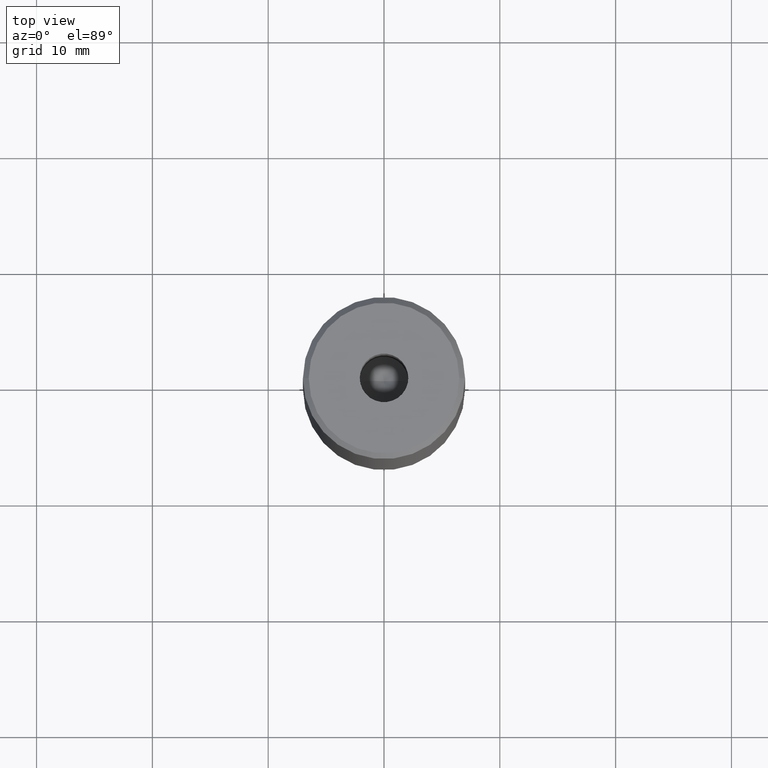
[diagram: clean part render]
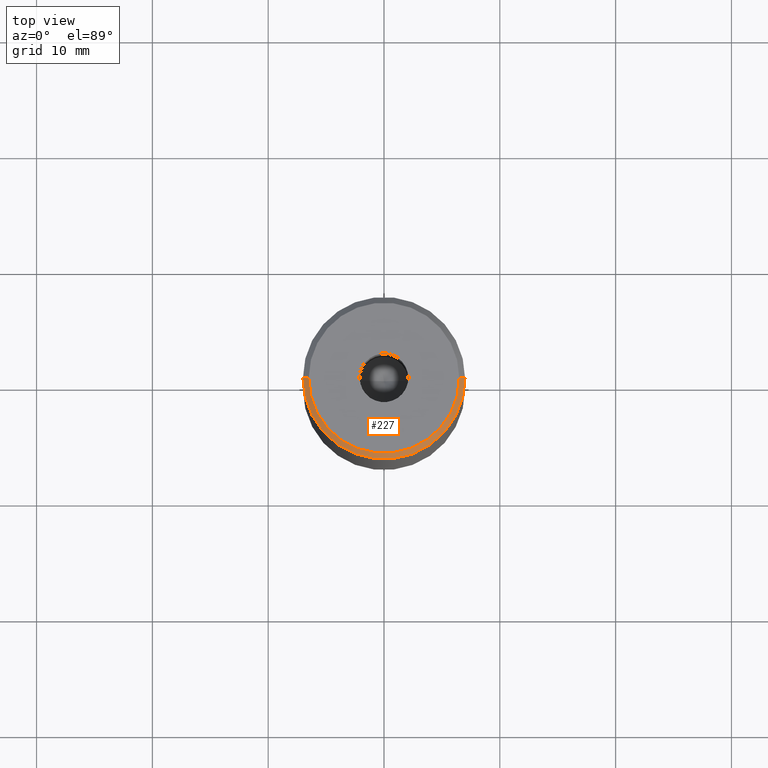
[diagram: same view with one face highlighted and labeled with its STEP entity id]
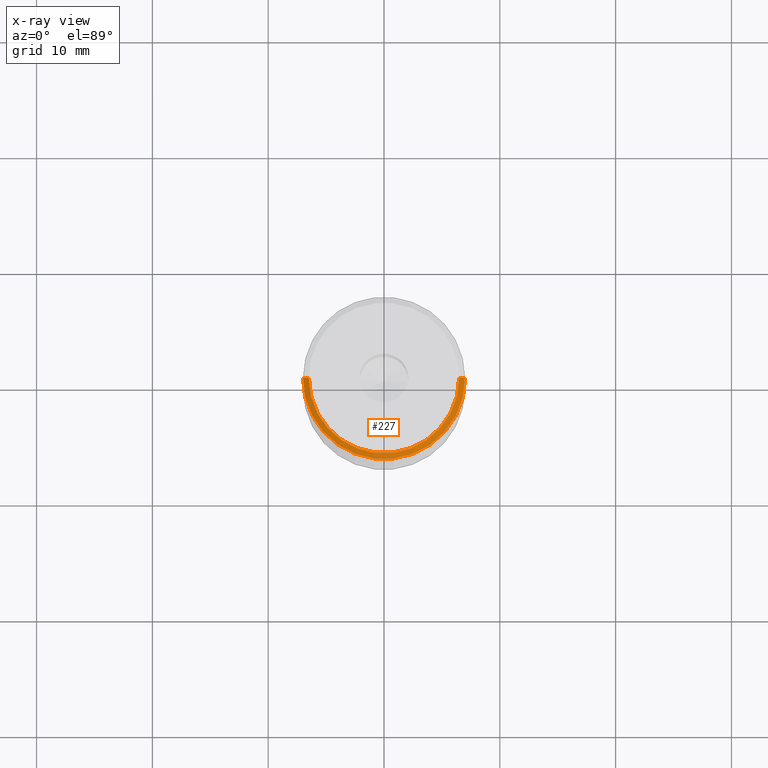
[diagram: x-ray of the same camera — body ghosted, the highlighted face saturated]
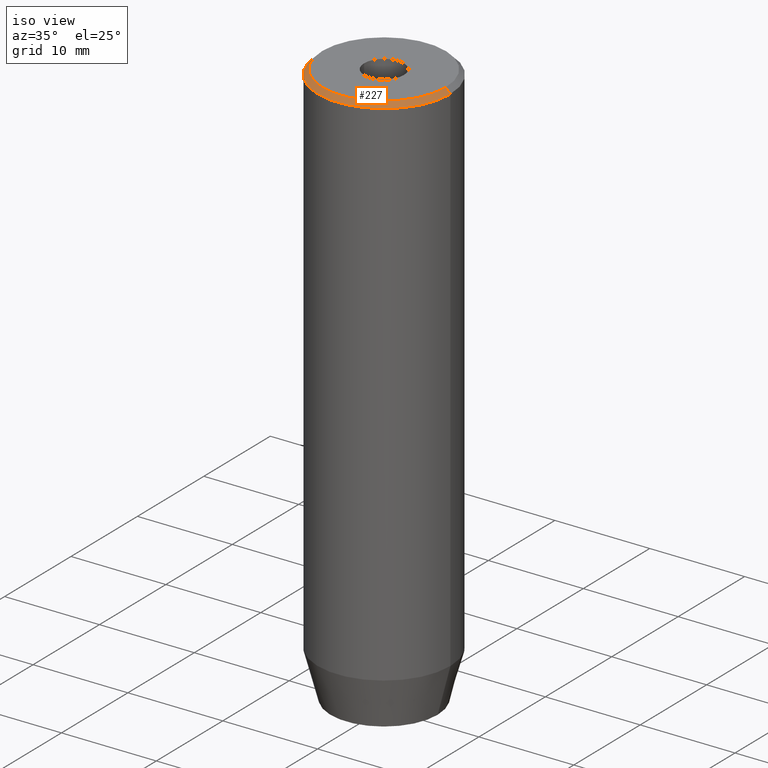
[diagram: same view with one face highlighted and labeled with its STEP entity id]
A machine part, top view. The second image highlights one B-rep face of the part: STEP entity #227.
The next image is the same camera in x-ray: the body ghosted, the highlighted face saturated — about 0% of this face is hidden behind the body in this view.
A second angle (iso view) of the same face is appended — the face is thin or edge-on in the first view.
In plain terms, the highlighted conical surface has half-angle 45 deg.
Its self-contained STEP definition (entity closure, byte-faithful):
#6 = EDGE_LOOP ( 'NONE', ( #409, #584, #286, #446 ) ) ;
#12 = VERTEX_POINT ( 'NONE', #552 ) ;
#21 = EDGE_CURVE ( 'NONE', #440, #117, #335, .T. ) ;
#48 = DIRECTION ( 'NONE',  ( 1.000000000000000000, 0.000000000000000000, 0.000000000000000000 ) ) ;
#59 = FACE_OUTER_BOUND ( 'NONE', #6, .T. ) ;
#62 = DIRECTION ( 'NONE',  ( -1.000000000000000000, 0.000000000000000000, 0.000000000000000000 ) ) ;
#64 = AXIS2_PLACEMENT_3D ( 'NONE', #184, #274, #488 ) ;
#117 = VERTEX_POINT ( 'NONE', #348 ) ;
#141 = VERTEX_POINT ( 'NONE', #385 ) ;
#155 = DIRECTION ( 'NONE',  ( 0.000000000000000000, 0.000000000000000000, -1.000000000000000000 ) ) ;
#171 = AXIS2_PLACEMENT_3D ( 'NONE', #557, #155, #62 ) ;
#180 = VECTOR ( 'NONE', #469, 1000.000000000000000 ) ;
#184 = CARTESIAN_POINT ( 'NONE',  ( 0.000000000000000000, 0.000000000000000000, -0.5000000000000117684 ) ) ;
#194 = CARTESIAN_POINT ( 'NONE',  ( -6.499999999999999112, 0.000000000000000000, 0.000000000000000000 ) ) ;
#211 = CARTESIAN_POINT ( 'NONE',  ( 6.499999999999999112, 8.266365894244633347E-16, 0.000000000000000000 ) ) ;
#227 = ADVANCED_FACE ( 'NONE', ( #59 ), #368, .T. ) ;
#245 = LINE ( 'NONE', #194, #316 ) ;
#263 = EDGE_CURVE ( 'NONE', #12, #141, #245, .T. ) ;
#274 = DIRECTION ( 'NONE',  ( 0.000000000000000000, 0.000000000000000000, -1.000000000000000000 ) ) ;
#279 = CIRCLE ( 'NONE', #531, 6.499999999999999112 ) ;
#286 = ORIENTED_EDGE ( 'NONE', *, *, #263, .T. ) ;
#295 = CARTESIAN_POINT ( 'NONE',  ( 6.499999999999999112, 7.960204194457794491E-16, 0.000000000000000000 ) ) ;
#316 = VECTOR ( 'NONE', #553, 1000.000000000000000 ) ;
#325 = CARTESIAN_POINT ( 'NONE',  ( 0.000000000000000000, 0.000000000000000000, 0.000000000000000000 ) ) ;
#327 = CIRCLE ( 'NONE', #64, 7.000000000000000000 ) ;
#335 = LINE ( 'NONE', #295, #180 ) ;
#348 = CARTESIAN_POINT ( 'NONE',  ( 7.000000000000000000, 0.000000000000000000, -0.5000000000000117684 ) ) ;
#368 = CONICAL_SURFACE ( 'NONE', #171, 6.499999999999999112, 0.7853981633974378429 ) ;
#385 = CARTESIAN_POINT ( 'NONE',  ( -7.000000000000000000, 8.572527594031473190E-16, -0.5000000000000117684 ) ) ;
#409 = ORIENTED_EDGE ( 'NONE', *, *, #21, .F. ) ;
#440 = VERTEX_POINT ( 'NONE', #211 ) ;
#446 = ORIENTED_EDGE ( 'NONE', *, *, #561, .F. ) ;
#469 = DIRECTION ( 'NONE',  ( 0.7071067811865401342, 8.659560562354842879E-17, -0.7071067811865549002 ) ) ;
#488 = DIRECTION ( 'NONE',  ( 1.000000000000000000, 0.000000000000000000, 0.000000000000000000 ) ) ;
#531 = AXIS2_PLACEMENT_3D ( 'NONE', #325, #540, #48 ) ;
#540 = DIRECTION ( 'NONE',  ( -0.000000000000000000, -0.000000000000000000, 1.000000000000000000 ) ) ;
#552 = CARTESIAN_POINT ( 'NONE',  ( -6.499999999999999112, 0.000000000000000000, 0.000000000000000000 ) ) ;
#553 = DIRECTION ( 'NONE',  ( -0.7071067811865401342, 0.000000000000000000, -0.7071067811865549002 ) ) ;
#557 = CARTESIAN_POINT ( 'NONE',  ( 0.000000000000000000, 0.000000000000000000, 0.000000000000000000 ) ) ;
#561 = EDGE_CURVE ( 'NONE', #117, #141, #327, .T. ) ;
#571 = EDGE_CURVE ( 'NONE', #12, #440, #279, .T. ) ;
#584 = ORIENTED_EDGE ( 'NONE', *, *, #571, .F. ) ;